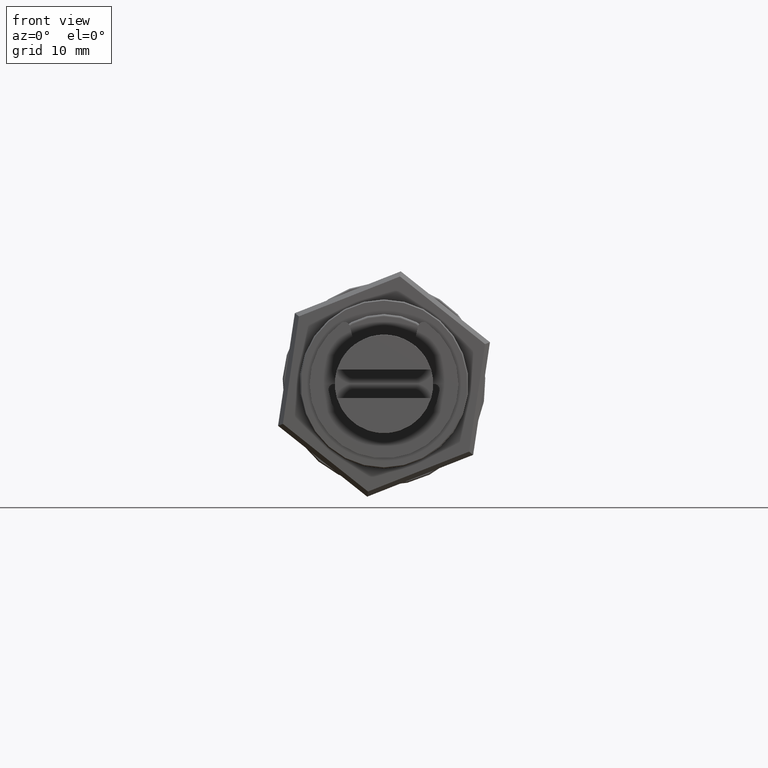
[diagram: clean part render]
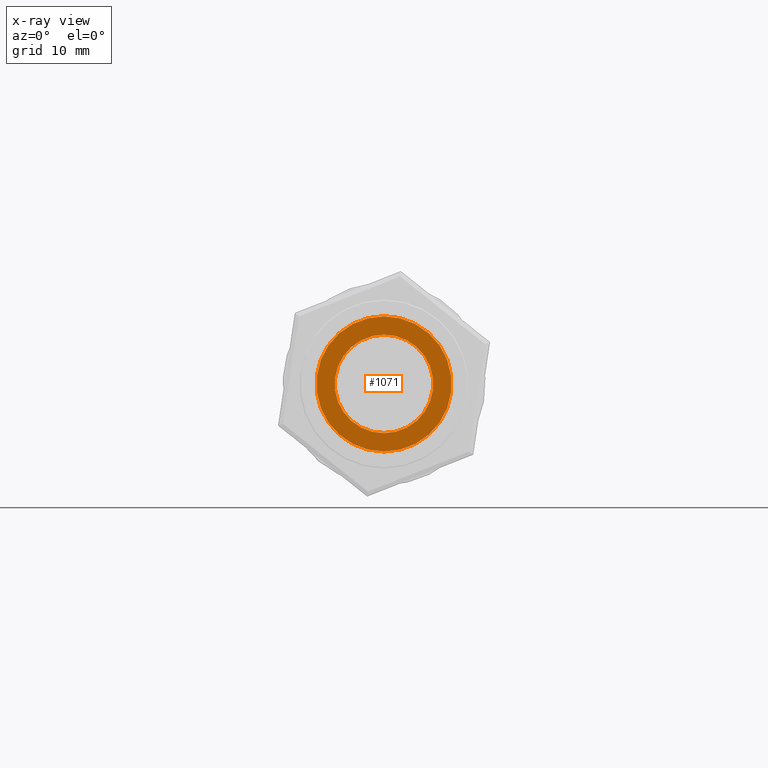
[diagram: x-ray — body ghosted, one internal face saturated and labeled with its STEP entity id]
A machine part, front view, then the same camera in x-ray: the body is ghosted and one INTERNAL B-rep face — a face not visible from any outside direction — is saturated and labeled: STEP entity #1071.
In plain terms, the highlighted planar face has unit normal (-0, -1, 0).
Its self-contained STEP definition (entity closure, byte-faithful):
#61=CIRCLE('',#1209,0.00762);
#62=CIRCLE('',#1210,0.0055499);
#225=ORIENTED_EDGE('',*,*,#453,.T.);
#226=ORIENTED_EDGE('',*,*,#454,.T.);
#453=EDGE_CURVE('',#571,#571,#61,.F.);
#454=EDGE_CURVE('',#572,#572,#62,.T.);
#571=VERTEX_POINT('',#1754);
#572=VERTEX_POINT('',#1756);
#827=EDGE_LOOP('',(#225));
#828=EDGE_LOOP('',(#226));
#929=FACE_BOUND('',#827,.T.);
#930=FACE_BOUND('',#828,.T.);
#1029=PLANE('',#1208);
#1071=ADVANCED_FACE('',(#929,#930),#1029,.F.);
#1208=AXIS2_PLACEMENT_3D('',#1752,#1407,#1408);
#1209=AXIS2_PLACEMENT_3D('',#1753,#1409,#1410);
#1210=AXIS2_PLACEMENT_3D('',#1755,#1411,#1412);
#1407=DIRECTION('',(0.,0.,-1.));
#1408=DIRECTION('',(-1.,0.,0.));
#1409=DIRECTION('',(0.,0.,-1.));
#1410=DIRECTION('',(-1.,0.,0.));
#1411=DIRECTION('',(0.,0.,-1.));
#1412=DIRECTION('',(-1.,0.,0.));
#1752=CARTESIAN_POINT('',(0.00671195,0.,-1.45220746202018E-19));
#1753=CARTESIAN_POINT('',(0.,0.,-1.62630325872826E-19));
#1754=CARTESIAN_POINT('',(-0.00762,0.,-1.62630325872826E-19));
#1755=CARTESIAN_POINT('',(0.,0.,0.));
#1756=CARTESIAN_POINT('',(-0.0055499,0.,0.));